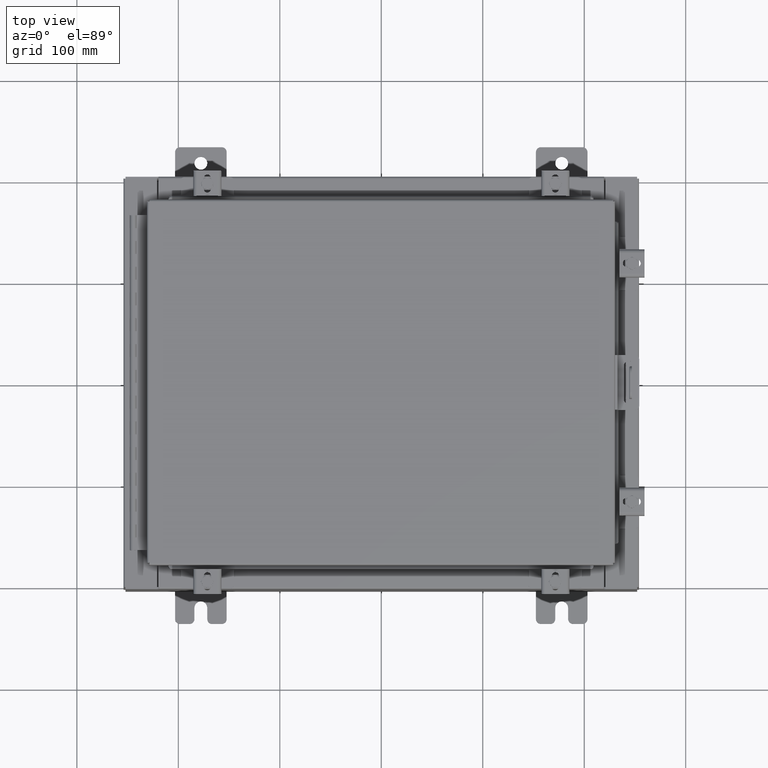
[diagram: clean part render]
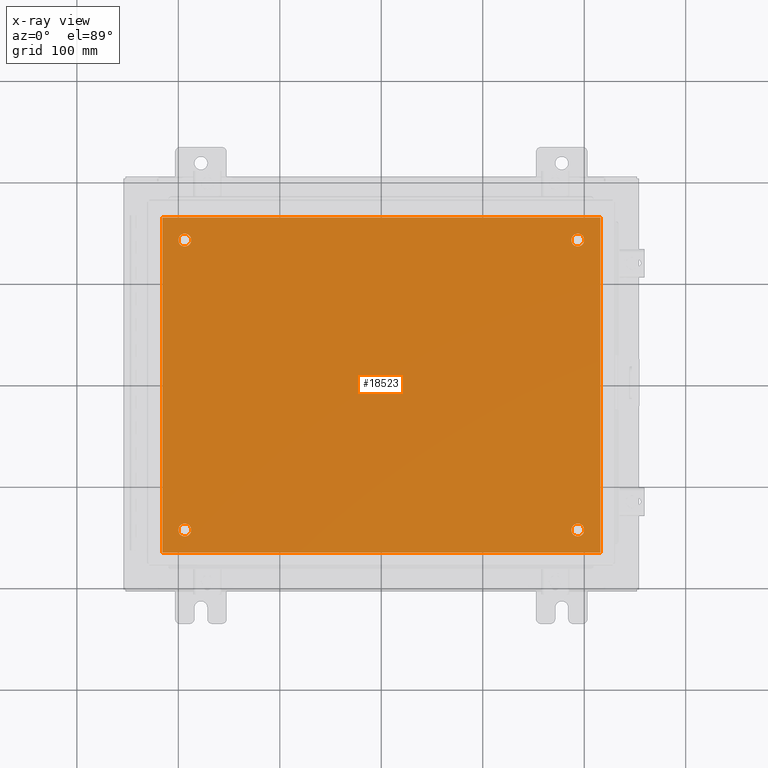
[diagram: x-ray — body ghosted, one internal face saturated and labeled with its STEP entity id]
A machine part, top view, then the same camera in x-ray: the body is ghosted and one INTERNAL B-rep face — a face not visible from any outside direction — is saturated and labeled: STEP entity #18523.
In plain terms, the highlighted planar face has unit normal (0, 0, -1).
Its self-contained STEP definition (entity closure, byte-faithful):
#28 = DIRECTION ( 'NONE',  ( -1.000000000000000000, 0.0000000000000000000, 0.0000000000000000000 ) ) ;
#265 = ORIENTED_EDGE ( 'NONE', *, *, #23572, .T. ) ;
#494 = CARTESIAN_POINT ( 'NONE',  ( -7.625000000000000000, -5.625000000000000000, -0.1039999999999999800 ) ) ;
#686 = DIRECTION ( 'NONE',  ( -0.0000000000000000000, -0.0000000000000000000, 1.000000000000000000 ) ) ;
#707 = EDGE_CURVE ( 'NONE', #10081, #19033, #13418, .T. ) ;
#1118 = PLANE ( 'NONE',  #9318 ) ;
#1402 = DIRECTION ( 'NONE',  ( 1.000000000000000000, 0.0000000000000000000, 0.0000000000000000000 ) ) ;
#1635 = CIRCLE ( 'NONE', #4182, 0.2499999999999998100 ) ;
#1641 = DIRECTION ( 'NONE',  ( -1.000000000000000000, 0.0000000000000000000, 0.0000000000000000000 ) ) ;
#1735 = VERTEX_POINT ( 'NONE', #23502 ) ;
#2524 = ORIENTED_EDGE ( 'NONE', *, *, #11246, .T. ) ;
#2535 = DIRECTION ( 'NONE',  ( -1.000000000000000000, 0.0000000000000000000, 0.0000000000000000000 ) ) ;
#2719 = EDGE_CURVE ( 'NONE', #8764, #10081, #15010, .T. ) ;
#2754 = VECTOR ( 'NONE', #1402, 39.37007874015748100 ) ;
#3099 = CARTESIAN_POINT ( 'NONE',  ( -8.499999999999996400, 6.500000000000000000, -0.1039999999999999800 ) ) ;
#3109 = AXIS2_PLACEMENT_3D ( 'NONE', #23992, #11907, #26015 ) ;
#3482 = FACE_BOUND ( 'NONE', #23296, .T. ) ;
#4182 = AXIS2_PLACEMENT_3D ( 'NONE', #494, #14547, #2535 ) ;
#4216 = AXIS2_PLACEMENT_3D ( 'NONE', #25760, #13645, #1641 ) ;
#4381 = VERTEX_POINT ( 'NONE', #8619 ) ;
#4753 = CARTESIAN_POINT ( 'NONE',  ( 7.375000000000000900, 5.625000000000000000, -0.1039999999999999800 ) ) ;
#4863 = AXIS2_PLACEMENT_3D ( 'NONE', #20547, #8475, #22571 ) ;
#5116 = LINE ( 'NONE', #8343, #19883 ) ;
#5600 = VERTEX_POINT ( 'NONE', #10968 ) ;
#5823 = EDGE_LOOP ( 'NONE', ( #18600, #265 ) ) ;
#6360 = EDGE_CURVE ( 'NONE', #1735, #16618, #11463, .T. ) ;
#6558 = LINE ( 'NONE', #9445, #23250 ) ;
#6975 = CARTESIAN_POINT ( 'NONE',  ( 8.500000000000003600, -6.500000000000000000, -0.1039999999999999800 ) ) ;
#7159 = DIRECTION ( 'NONE',  ( 0.0000000000000000000, 0.0000000000000000000, -1.000000000000000000 ) ) ;
#7401 = CARTESIAN_POINT ( 'NONE',  ( 7.625000000000000000, 5.625000000000000000, -0.1039999999999999800 ) ) ;
#7680 = DIRECTION ( 'NONE',  ( -0.0000000000000000000, -1.000000000000000000, -0.0000000000000000000 ) ) ;
#8057 = EDGE_CURVE ( 'NONE', #11603, #16928, #1635, .T. ) ;
#8193 = FACE_OUTER_BOUND ( 'NONE', #9396, .T. ) ;
#8343 = CARTESIAN_POINT ( 'NONE',  ( -8.499999999999996400, 6.500000000000000000, -0.1039999999999999800 ) ) ;
#8443 = CARTESIAN_POINT ( 'NONE',  ( -8.499999999999996400, -6.500000000000000000, -0.1039999999999999800 ) ) ;
#8475 = DIRECTION ( 'NONE',  ( -0.0000000000000000000, -0.0000000000000000000, 1.000000000000000000 ) ) ;
#8619 = CARTESIAN_POINT ( 'NONE',  ( 7.375000000000000900, -5.625000000000000000, -0.1039999999999999800 ) ) ;
#8764 = VERTEX_POINT ( 'NONE', #3099 ) ;
#8800 = ORIENTED_EDGE ( 'NONE', *, *, #17742, .F. ) ;
#8912 = CIRCLE ( 'NONE', #16432, 0.2499999999999987000 ) ;
#9051 = ORIENTED_EDGE ( 'NONE', *, *, #15038, .T. ) ;
#9096 = CARTESIAN_POINT ( 'NONE',  ( 0.0000000000000000000, 0.0000000000000000000, -0.1039999999999999800 ) ) ;
#9223 = CARTESIAN_POINT ( 'NONE',  ( 7.625000000000000000, 5.625000000000000000, -0.1039999999999999800 ) ) ;
#9287 = CIRCLE ( 'NONE', #21913, 0.2499999999999987000 ) ;
#9318 = AXIS2_PLACEMENT_3D ( 'NONE', #9096, #7159, #21254 ) ;
#9396 = EDGE_LOOP ( 'NONE', ( #14323, #10556, #24378, #8800 ) ) ;
#9430 = DIRECTION ( 'NONE',  ( -1.000000000000000000, 0.0000000000000000000, 0.0000000000000000000 ) ) ;
#9445 = CARTESIAN_POINT ( 'NONE',  ( 8.500000000000003600, -6.500000000000000000, -0.1039999999999999800 ) ) ;
#10081 = VERTEX_POINT ( 'NONE', #8443 ) ;
#10556 = ORIENTED_EDGE ( 'NONE', *, *, #707, .F. ) ;
#10968 = CARTESIAN_POINT ( 'NONE',  ( 7.874999999999998200, 5.625000000000000000, -0.1039999999999999800 ) ) ;
#11246 = EDGE_CURVE ( 'NONE', #4381, #17860, #16387, .T. ) ;
#11260 = DIRECTION ( 'NONE',  ( -1.000000000000000000, 0.0000000000000000000, 0.0000000000000000000 ) ) ;
#11463 = CIRCLE ( 'NONE', #3109, 0.2499999999999998100 ) ;
#11603 = VERTEX_POINT ( 'NONE', #25394 ) ;
#11665 = CARTESIAN_POINT ( 'NONE',  ( -8.499999999999996400, -6.500000000000000000, -0.1039999999999999800 ) ) ;
#11907 = DIRECTION ( 'NONE',  ( -0.0000000000000000000, -0.0000000000000000000, 1.000000000000000000 ) ) ;
#12088 = DIRECTION ( 'NONE',  ( -0.0000000000000000000, -0.0000000000000000000, 1.000000000000000000 ) ) ;
#12410 = EDGE_CURVE ( 'NONE', #19033, #19795, #6558, .T. ) ;
#12454 = EDGE_CURVE ( 'NONE', #16928, #11603, #16619, .T. ) ;
#12710 = CARTESIAN_POINT ( 'NONE',  ( -7.625000000000000000, 5.625000000000000000, -0.1039999999999999800 ) ) ;
#13401 = CARTESIAN_POINT ( 'NONE',  ( -8.499999999999996400, -6.500000000000000000, -0.1039999999999999800 ) ) ;
#13418 = LINE ( 'NONE', #13401, #2754 ) ;
#13446 = CARTESIAN_POINT ( 'NONE',  ( -7.874999999999999100, 5.625000000000000000, -0.1039999999999999800 ) ) ;
#13514 = FACE_BOUND ( 'NONE', #16644, .T. ) ;
#13645 = DIRECTION ( 'NONE',  ( -0.0000000000000000000, -0.0000000000000000000, 1.000000000000000000 ) ) ;
#13956 = CIRCLE ( 'NONE', #22607, 0.2499999999999998100 ) ;
#13997 = EDGE_CURVE ( 'NONE', #5600, #15058, #9287, .T. ) ;
#14162 = FACE_BOUND ( 'NONE', #17627, .T. ) ;
#14323 = ORIENTED_EDGE ( 'NONE', *, *, #12410, .F. ) ;
#14547 = DIRECTION ( 'NONE',  ( -0.0000000000000000000, -0.0000000000000000000, 1.000000000000000000 ) ) ;
#14726 = DIRECTION ( 'NONE',  ( -1.000000000000000000, 0.0000000000000000000, 0.0000000000000000000 ) ) ;
#15010 = LINE ( 'NONE', #11665, #19739 ) ;
#15038 = EDGE_CURVE ( 'NONE', #16618, #1735, #13956, .T. ) ;
#15058 = VERTEX_POINT ( 'NONE', #4753 ) ;
#16387 = CIRCLE ( 'NONE', #4863, 0.2499999999999987000 ) ;
#16432 = AXIS2_PLACEMENT_3D ( 'NONE', #9223, #23326, #11260 ) ;
#16590 = AXIS2_PLACEMENT_3D ( 'NONE', #24164, #12088, #28 ) ;
#16618 = VERTEX_POINT ( 'NONE', #13446 ) ;
#16619 = CIRCLE ( 'NONE', #4216, 0.2499999999999998100 ) ;
#16644 = EDGE_LOOP ( 'NONE', ( #17057, #9051 ) ) ;
#16928 = VERTEX_POINT ( 'NONE', #20007 ) ;
#17057 = ORIENTED_EDGE ( 'NONE', *, *, #6360, .T. ) ;
#17627 = EDGE_LOOP ( 'NONE', ( #18508, #2524 ) ) ;
#17742 = EDGE_CURVE ( 'NONE', #19795, #8764, #5116, .T. ) ;
#17860 = VERTEX_POINT ( 'NONE', #22792 ) ;
#18508 = ORIENTED_EDGE ( 'NONE', *, *, #24953, .T. ) ;
#18523 = ADVANCED_FACE ( 'NONE', ( #3482, #14162, #18879, #13514, #8193 ), #1118, .T. ) ;
#18531 = ORIENTED_EDGE ( 'NONE', *, *, #8057, .T. ) ;
#18600 = ORIENTED_EDGE ( 'NONE', *, *, #13997, .T. ) ;
#18879 = FACE_BOUND ( 'NONE', #5823, .T. ) ;
#19033 = VERTEX_POINT ( 'NONE', #6975 ) ;
#19739 = VECTOR ( 'NONE', #7680, 39.37007874015748100 ) ;
#19795 = VERTEX_POINT ( 'NONE', #24958 ) ;
#19883 = VECTOR ( 'NONE', #24489, 39.37007874015748100 ) ;
#20007 = CARTESIAN_POINT ( 'NONE',  ( -7.375000000000000000, -5.625000000000000000, -0.1039999999999999800 ) ) ;
#20547 = CARTESIAN_POINT ( 'NONE',  ( 7.625000000000000000, -5.625000000000000000, -0.1039999999999999800 ) ) ;
#20891 = CIRCLE ( 'NONE', #16590, 0.2499999999999987000 ) ;
#21254 = DIRECTION ( 'NONE',  ( -1.000000000000000000, 0.0000000000000000000, -0.0000000000000000000 ) ) ;
#21491 = DIRECTION ( 'NONE',  ( -0.0000000000000000000, -0.0000000000000000000, 1.000000000000000000 ) ) ;
#21778 = ORIENTED_EDGE ( 'NONE', *, *, #12454, .T. ) ;
#21913 = AXIS2_PLACEMENT_3D ( 'NONE', #7401, #21491, #9430 ) ;
#22571 = DIRECTION ( 'NONE',  ( -1.000000000000000000, 0.0000000000000000000, 0.0000000000000000000 ) ) ;
#22607 = AXIS2_PLACEMENT_3D ( 'NONE', #12710, #686, #14726 ) ;
#22792 = CARTESIAN_POINT ( 'NONE',  ( 7.874999999999998200, -5.625000000000000000, -0.1039999999999999800 ) ) ;
#23250 = VECTOR ( 'NONE', #23531, 39.37007874015748100 ) ;
#23296 = EDGE_LOOP ( 'NONE', ( #21778, #18531 ) ) ;
#23326 = DIRECTION ( 'NONE',  ( -0.0000000000000000000, -0.0000000000000000000, 1.000000000000000000 ) ) ;
#23502 = CARTESIAN_POINT ( 'NONE',  ( -7.375000000000000000, 5.625000000000000000, -0.1039999999999999800 ) ) ;
#23531 = DIRECTION ( 'NONE',  ( 0.0000000000000000000, 1.000000000000000000, 0.0000000000000000000 ) ) ;
#23572 = EDGE_CURVE ( 'NONE', #15058, #5600, #8912, .T. ) ;
#23992 = CARTESIAN_POINT ( 'NONE',  ( -7.625000000000000000, 5.625000000000000000, -0.1039999999999999800 ) ) ;
#24164 = CARTESIAN_POINT ( 'NONE',  ( 7.625000000000000000, -5.625000000000000000, -0.1039999999999999800 ) ) ;
#24378 = ORIENTED_EDGE ( 'NONE', *, *, #2719, .F. ) ;
#24489 = DIRECTION ( 'NONE',  ( -1.000000000000000000, -0.0000000000000000000, -0.0000000000000000000 ) ) ;
#24953 = EDGE_CURVE ( 'NONE', #17860, #4381, #20891, .T. ) ;
#24958 = CARTESIAN_POINT ( 'NONE',  ( 8.500000000000003600, 6.500000000000000000, -0.1039999999999999800 ) ) ;
#25394 = CARTESIAN_POINT ( 'NONE',  ( -7.874999999999999100, -5.625000000000000000, -0.1039999999999999800 ) ) ;
#25760 = CARTESIAN_POINT ( 'NONE',  ( -7.625000000000000000, -5.625000000000000000, -0.1039999999999999800 ) ) ;
#26015 = DIRECTION ( 'NONE',  ( -1.000000000000000000, 0.0000000000000000000, 0.0000000000000000000 ) ) ;